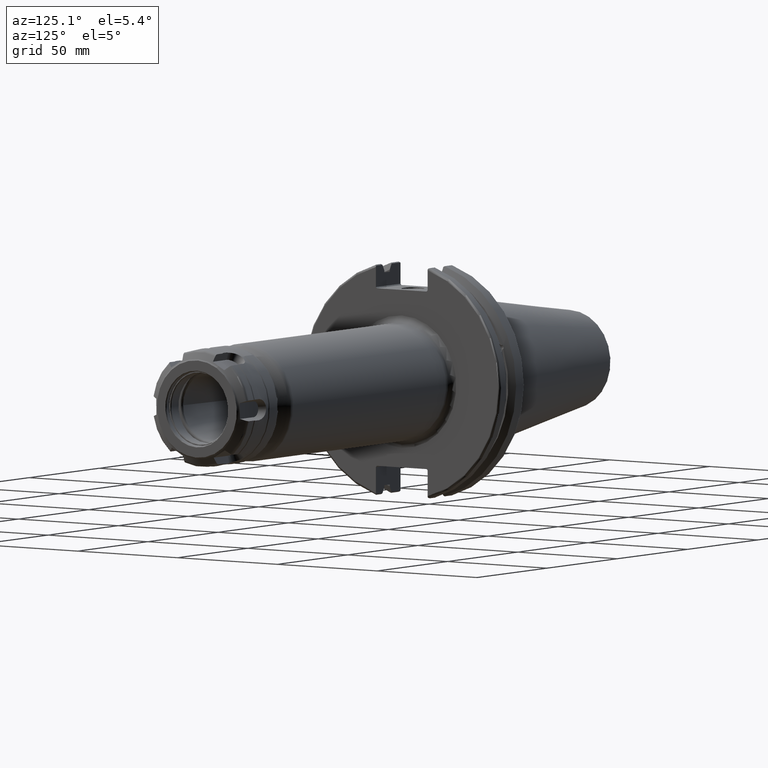
[diagram: clean part render]
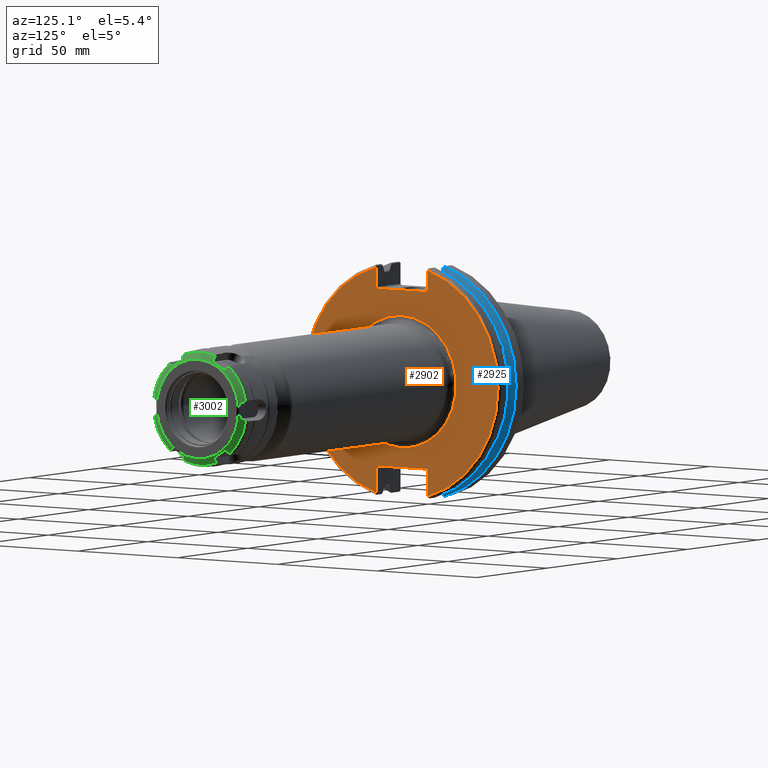
[diagram: same view with three faces highlighted in distinct colors, each labeled with its STEP entity id]
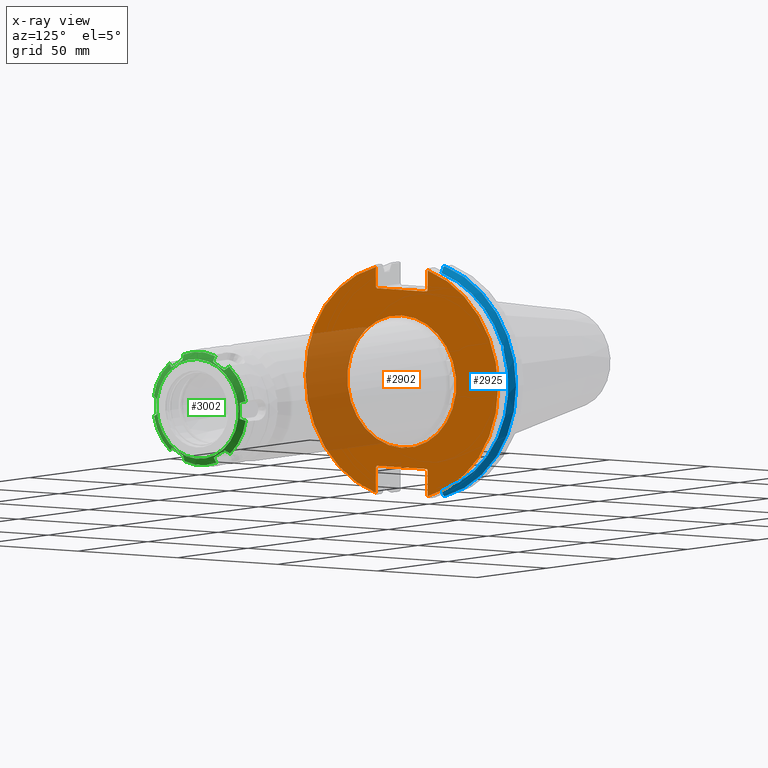
[diagram: x-ray of the same camera — body ghosted, the three highlighted faces saturated]
A machine part, auxiliary view with three faces highlighted in distinct colors.
The next image is the same camera in x-ray (body ghosted, the three faces saturated) — at least one of them is partly hidden behind the body in this view.
Their STEP definitions:

[orange] entity #2902 — the highlighted planar face has unit normal (1, 0, 0).
#200=LINE('',#4392,#370);
#201=LINE('',#4394,#371);
#202=LINE('',#4396,#372);
#203=LINE('',#4398,#373);
#204=LINE('',#4400,#374);
#205=LINE('',#4404,#375);
#206=LINE('',#4406,#376);
#207=LINE('',#4408,#377);
#208=LINE('',#4410,#378);
#209=LINE('',#4411,#379);
#370=VECTOR('',#3553,10.);
#371=VECTOR('',#3554,10.);
#372=VECTOR('',#3555,10.);
#373=VECTOR('',#3556,10.);
#374=VECTOR('',#3557,10.);
#375=VECTOR('',#3560,10.);
#376=VECTOR('',#3561,10.);
#377=VECTOR('',#3562,10.);
#378=VECTOR('',#3563,10.);
#379=VECTOR('',#3564,10.);
#577=FACE_BOUND('',#845,.T.);
#601=PLANE('',#3163);
#673=FACE_OUTER_BOUND('',#844,.T.);
#844=EDGE_LOOP('',(#2010,#2011,#2012,#2013,#2014,#2015,#2016,#2017,#2018,
#2019,#2020,#2021));
#845=EDGE_LOOP('',(#2022));
#1050=CIRCLE('',#3162,27.25);
#1051=CIRCLE('',#3164,48.2125);
#1052=CIRCLE('',#3165,48.2125);
#1211=VERTEX_POINT('',#4384);
#1212=VERTEX_POINT('',#4388);
#1213=VERTEX_POINT('',#4389);
#1214=VERTEX_POINT('',#4391);
#1215=VERTEX_POINT('',#4393);
#1216=VERTEX_POINT('',#4395);
#1217=VERTEX_POINT('',#4397);
#1218=VERTEX_POINT('',#4399);
#1219=VERTEX_POINT('',#4401);
#1220=VERTEX_POINT('',#4403);
#1221=VERTEX_POINT('',#4405);
#1222=VERTEX_POINT('',#4407);
#1223=VERTEX_POINT('',#4409);
#1525=EDGE_CURVE('',#1211,#1211,#1050,.T.);
#1526=EDGE_CURVE('',#1212,#1213,#1051,.T.);
#1527=EDGE_CURVE('',#1212,#1214,#200,.T.);
#1528=EDGE_CURVE('',#1215,#1214,#201,.T.);
#1529=EDGE_CURVE('',#1215,#1216,#202,.T.);
#1530=EDGE_CURVE('',#1217,#1216,#203,.T.);
#1531=EDGE_CURVE('',#1217,#1218,#204,.T.);
#1532=EDGE_CURVE('',#1219,#1218,#1052,.T.);
#1533=EDGE_CURVE('',#1219,#1220,#205,.T.);
#1534=EDGE_CURVE('',#1221,#1220,#206,.T.);
#1535=EDGE_CURVE('',#1221,#1222,#207,.T.);
#1536=EDGE_CURVE('',#1223,#1222,#208,.T.);
#1537=EDGE_CURVE('',#1223,#1213,#209,.T.);
#2010=ORIENTED_EDGE('',*,*,#1526,.F.);
#2011=ORIENTED_EDGE('',*,*,#1527,.T.);
#2012=ORIENTED_EDGE('',*,*,#1528,.F.);
#2013=ORIENTED_EDGE('',*,*,#1529,.T.);
#2014=ORIENTED_EDGE('',*,*,#1530,.F.);
#2015=ORIENTED_EDGE('',*,*,#1531,.T.);
#2016=ORIENTED_EDGE('',*,*,#1532,.F.);
#2017=ORIENTED_EDGE('',*,*,#1533,.T.);
#2018=ORIENTED_EDGE('',*,*,#1534,.F.);
#2019=ORIENTED_EDGE('',*,*,#1535,.T.);
#2020=ORIENTED_EDGE('',*,*,#1536,.F.);
#2021=ORIENTED_EDGE('',*,*,#1537,.T.);
#2022=ORIENTED_EDGE('',*,*,#1525,.F.);
#2902=ADVANCED_FACE('',(#673,#577),#601,.T.);
#3162=AXIS2_PLACEMENT_3D('',#4386,#3547,#3548);
#3163=AXIS2_PLACEMENT_3D('',#4387,#3549,#3550);
#3164=AXIS2_PLACEMENT_3D('',#4390,#3551,#3552);
#3165=AXIS2_PLACEMENT_3D('',#4402,#3558,#3559);
#3547=DIRECTION('center_axis',(1.,0.,0.));
#3548=DIRECTION('ref_axis',(0.,-1.,-1.22464679914735E-16));
#3549=DIRECTION('center_axis',(1.,0.,0.));
#3550=DIRECTION('ref_axis',(0.,0.,-1.));
#3551=DIRECTION('center_axis',(-1.,0.,0.));
#3552=DIRECTION('ref_axis',(0.,1.,-6.12323399573677E-17));
#3553=DIRECTION('',(0.,0.,-1.));
#3554=DIRECTION('',(0.,0.707106781186549,0.707106781186546));
#3555=DIRECTION('',(0.,-1.,0.));
#3556=DIRECTION('',(0.,0.707106781186549,-0.707106781186546));
#3557=DIRECTION('',(0.,0.,1.));
#3558=DIRECTION('center_axis',(-1.,0.,0.));
#3559=DIRECTION('ref_axis',(0.,-1.,1.60812264967664E-16));
#3560=DIRECTION('',(0.,0.,1.));
#3561=DIRECTION('',(0.,-0.707106781186549,-0.707106781186546));
#3562=DIRECTION('',(0.,1.,0.));
#3563=DIRECTION('',(0.,-0.707106781186548,0.707106781186548));
#3564=DIRECTION('',(0.,0.,-1.));
#4384=CARTESIAN_POINT('',(19.05,-3.33716252767654E-15,-27.25));
#4386=CARTESIAN_POINT('Origin',(19.05,0.,0.));
#4387=CARTESIAN_POINT('Origin',(19.05,0.,0.));
#4388=CARTESIAN_POINT('',(19.05,12.95,46.4407434937254));
#4389=CARTESIAN_POINT('',(19.05,12.95,-46.4407434937254));
#4390=CARTESIAN_POINT('Origin',(19.05,0.,0.));
#4391=CARTESIAN_POINT('',(19.05,12.95,38.219));
#4392=CARTESIAN_POINT('',(19.05,12.95,18.8595));
#4393=CARTESIAN_POINT('',(19.05,12.45,37.719));
#4394=CARTESIAN_POINT('',(19.05,0.0327499999999836,25.30175));
#4395=CARTESIAN_POINT('',(19.05,-12.45,37.719));
#4396=CARTESIAN_POINT('',(19.05,0.,37.719));
#4397=CARTESIAN_POINT('',(19.05,-12.95,38.219));
#4398=CARTESIAN_POINT('',(19.05,-0.0327499999999817,25.30175));
#4399=CARTESIAN_POINT('',(19.05,-12.95,46.4407434937254));
#4400=CARTESIAN_POINT('',(19.05,-12.95,18.8595));
#4401=CARTESIAN_POINT('',(19.05,-12.95,-46.4407434937254));
#4402=CARTESIAN_POINT('Origin',(19.05,0.,0.));
#4403=CARTESIAN_POINT('',(19.05,-12.95,-35.806));
#4404=CARTESIAN_POINT('',(19.05,-12.95,-17.653));
#4405=CARTESIAN_POINT('',(19.05,-12.45,-35.306));
#4406=CARTESIAN_POINT('',(19.05,-0.635999999999989,-23.492));
#4407=CARTESIAN_POINT('',(19.05,12.45,-35.306));
#4408=CARTESIAN_POINT('',(19.05,-3.88578058618805E-15,-35.306));
#4409=CARTESIAN_POINT('',(19.05,12.95,-35.806));
#4410=CARTESIAN_POINT('',(19.05,0.635999999999995,-23.492));
#4411=CARTESIAN_POINT('',(19.05,12.95,-17.653));

[blue] entity #2925 — the highlighted conical surface has half-angle 60 deg.
#31=(
BOUNDED_CURVE()
B_SPLINE_CURVE(2,(#4927,#4928,#4929),.UNSPECIFIED.,.F.,.F.)
B_SPLINE_CURVE_WITH_KNOTS((3,3),(0.,0.275823910672166),.UNSPECIFIED.)
CURVE()
GEOMETRIC_REPRESENTATION_ITEM()
RATIONAL_B_SPLINE_CURVE((1.,1.00038235574667,1.00012873636849))
REPRESENTATION_ITEM('')
);
#32=(
BOUNDED_CURVE()
B_SPLINE_CURVE(2,(#4931,#4932,#4933),.UNSPECIFIED.,.F.,.F.)
B_SPLINE_CURVE_WITH_KNOTS((3,3),(0.,0.0648240472897056),.UNSPECIFIED.)
CURVE()
GEOMETRIC_REPRESENTATION_ITEM()
RATIONAL_B_SPLINE_CURVE((1.,1.00011477674866,1.00019140645998))
REPRESENTATION_ITEM('')
);
#33=(
BOUNDED_CURVE()
B_SPLINE_CURVE(2,(#4937,#4938,#4939),.UNSPECIFIED.,.F.,.F.)
B_SPLINE_CURVE_WITH_KNOTS((3,3),(0.325260944932444,0.390084992222205),
 .UNSPECIFIED.)
CURVE()
GEOMETRIC_REPRESENTATION_ITEM()
RATIONAL_B_SPLINE_CURVE((1.00019140645975,1.00011477674852,1.))
REPRESENTATION_ITEM('')
);
#34=(
BOUNDED_CURVE()
B_SPLINE_CURVE(2,(#4941,#4942,#4943),.UNSPECIFIED.,.F.,.F.)
B_SPLINE_CURVE_WITH_KNOTS((3,3),(0.0558332664521729,0.331657177124506),
 .UNSPECIFIED.)
CURVE()
GEOMETRIC_REPRESENTATION_ITEM()
RATIONAL_B_SPLINE_CURVE((1.00012873636948,1.0003823557496,1.))
REPRESENTATION_ITEM('')
);
#99=B_SPLINE_CURVE_WITH_KNOTS('',3,(#4880,#4881,#4882,#4883,#4884,#4885,
#4886,#4887,#4888,#4889,#4890,#4891,#4892,#4893),.UNSPECIFIED.,.F.,.F.,
(4,2,2,2,2,2,4),(0.426712868358722,0.441644498666905,0.480313313223129,
0.518982127779353,0.557650942335577,0.596319756891801,0.611251387199987),
 .UNSPECIFIED.);
#541=CONICAL_SURFACE('',#3211,47.8172386482472,1.0471975511966);
#696=FACE_OUTER_BOUND('',#876,.T.);
#876=EDGE_LOOP('',(#2148,#2149,#2150,#2151,#2152,#2153,#2154,#2155));
#1075=CIRCLE('',#3212,46.4219772964944);
#1076=CIRCLE('',#3213,49.2125);
#1077=CIRCLE('',#3214,46.4219772964944);
#1276=VERTEX_POINT('',#4877);
#1277=VERTEX_POINT('',#4879);
#1281=VERTEX_POINT('',#4924);
#1282=VERTEX_POINT('',#4926);
#1283=VERTEX_POINT('',#4930);
#1284=VERTEX_POINT('',#4934);
#1285=VERTEX_POINT('',#4936);
#1286=VERTEX_POINT('',#4940);
#1609=EDGE_CURVE('',#1277,#1276,#99,.T.);
#1614=EDGE_CURVE('',#1281,#1276,#1075,.T.);
#1615=EDGE_CURVE('',#1281,#1282,#31,.T.);
#1616=EDGE_CURVE('',#1283,#1282,#32,.T.);
#1617=EDGE_CURVE('',#1283,#1284,#1076,.T.);
#1618=EDGE_CURVE('',#1285,#1284,#33,.T.);
#1619=EDGE_CURVE('',#1285,#1286,#34,.T.);
#1620=EDGE_CURVE('',#1277,#1286,#1077,.T.);
#2148=ORIENTED_EDGE('',*,*,#1609,.T.);
#2149=ORIENTED_EDGE('',*,*,#1614,.F.);
#2150=ORIENTED_EDGE('',*,*,#1615,.T.);
#2151=ORIENTED_EDGE('',*,*,#1616,.F.);
#2152=ORIENTED_EDGE('',*,*,#1617,.T.);
#2153=ORIENTED_EDGE('',*,*,#1618,.F.);
#2154=ORIENTED_EDGE('',*,*,#1619,.T.);
#2155=ORIENTED_EDGE('',*,*,#1620,.F.);
#2925=ADVANCED_FACE('',(#696),#541,.T.);
#3211=AXIS2_PLACEMENT_3D('',#4923,#3680,#3681);
#3212=AXIS2_PLACEMENT_3D('',#4925,#3682,#3683);
#3213=AXIS2_PLACEMENT_3D('',#4935,#3684,#3685);
#3214=AXIS2_PLACEMENT_3D('',#4944,#3686,#3687);
#3680=DIRECTION('center_axis',(-1.,0.,0.));
#3681=DIRECTION('ref_axis',(0.,1.,0.));
#3682=DIRECTION('center_axis',(1.,0.,0.));
#3683=DIRECTION('ref_axis',(0.,0.,-1.));
#3684=DIRECTION('center_axis',(1.,0.,0.));
#3685=DIRECTION('ref_axis',(0.,0.,-1.));
#3686=DIRECTION('center_axis',(1.,0.,0.));
#3687=DIRECTION('ref_axis',(0.,0.,-1.));
#4877=CARTESIAN_POINT('',(9.2191,43.9096390749305,15.0646464421033));
#4879=CARTESIAN_POINT('',(9.2191,43.3201030900029,16.6843832486479));
#4880=CARTESIAN_POINT('Ctrl Pts',(9.21909999999999,43.3201030900029,16.6843832486479));
#4881=CARTESIAN_POINT('Ctrl Pts',(9.20211843903391,43.3613106941341,16.6592273018006));
#4882=CARTESIAN_POINT('Ctrl Pts',(9.18608675403322,43.4012416983557,16.6326763251437));
#4883=CARTESIAN_POINT('Ctrl Pts',(9.13238673845037,43.539103734322,16.5325130832406));
#4884=CARTESIAN_POINT('Ctrl Pts',(9.09621610663555,43.6406982153492,16.441180795372));
#4885=CARTESIAN_POINT('Ctrl Pts',(9.04690868251975,43.8110833825827,16.2291323464527));
#4886=CARTESIAN_POINT('Ctrl Pts',(9.0341,43.8794096049168,16.10796730316));
#4887=CARTESIAN_POINT('Ctrl Pts',(9.0341,43.9675796948952,15.8657219718732));
#4888=CARTESIAN_POINT('Ctrl Pts',(9.04690868251975,43.9931221605126,15.7289849146254));
#4889=CARTESIAN_POINT('Ctrl Pts',(9.09621610663555,43.9989016655819,15.4570249042867));
#4890=CARTESIAN_POINT('Ctrl Pts',(9.13238673845037,43.9797830409458,15.3217566390708));
#4891=CARTESIAN_POINT('Ctrl Pts',(9.18608675403322,43.9385582852181,15.1564111356409));
#4892=CARTESIAN_POINT('Ctrl Pts',(9.20211843903392,43.9250360001461,15.1104047527575));
#4893=CARTESIAN_POINT('Ctrl Pts',(9.2191,43.9096390749305,15.0646464421033));
#4923=CARTESIAN_POINT('Origin',(8.41354548297563,0.,0.));
#4924=CARTESIAN_POINT('',(9.2191,12.95,-44.5791147973605));
#4925=CARTESIAN_POINT('Origin',(9.2191,0.,0.));
#4926=CARTESIAN_POINT('',(7.88638960562426,12.95,-46.9780755322918));
#4927=CARTESIAN_POINT('Ctrl Pts',(9.2191,12.95,-44.5791147973604));
#4928=CARTESIAN_POINT('Ctrl Pts',(8.57020449052114,12.95,-45.7494966802821));
#4929=CARTESIAN_POINT('Ctrl Pts',(7.88638960562426,12.95,-46.9780755322918));
#4930=CARTESIAN_POINT('',(7.60799096595127,13.4317035994433,-47.3440544806494));
#4931=CARTESIAN_POINT('Ctrl Pts',(7.60799096595127,13.4317035994433,-47.3440544806494));
#4932=CARTESIAN_POINT('Ctrl Pts',(7.74826896663827,13.1896660169965,-47.1601640966264));
#4933=CARTESIAN_POINT('Ctrl Pts',(7.88638960562426,12.95,-46.9780755322918));
#4934=CARTESIAN_POINT('',(7.60799096595127,13.4317035994433,47.3440544806494));
#4935=CARTESIAN_POINT('Origin',(7.60799096595127,0.,0.));
#4936=CARTESIAN_POINT('',(7.88638960562425,12.95,46.9780755322918));
#4937=CARTESIAN_POINT('Ctrl Pts',(7.88638960562425,12.95,46.9780755322918));
#4938=CARTESIAN_POINT('Ctrl Pts',(7.74826896663822,13.1896660169966,47.1601640966264));
#4939=CARTESIAN_POINT('Ctrl Pts',(7.60799096595127,13.4317035994433,47.3440544806494));
#4940=CARTESIAN_POINT('',(9.2191,12.95,44.5791147973604));
#4941=CARTESIAN_POINT('Ctrl Pts',(7.88638960562425,12.95,46.9780755322917));
#4942=CARTESIAN_POINT('Ctrl Pts',(8.57020449052122,12.95,45.749496680282));
#4943=CARTESIAN_POINT('Ctrl Pts',(9.2191,12.95,44.5791147973604));
#4944=CARTESIAN_POINT('Origin',(9.2191,0.,0.));

[green] entity #3002 — the highlighted conical surface has half-angle 60 deg.
#45=(
BOUNDED_CURVE()
B_SPLINE_CURVE(2,(#5309,#5310,#5311),.UNSPECIFIED.,.F.,.F.)
B_SPLINE_CURVE_WITH_KNOTS((3,3),(0.694545357055206,1.38391561202745),
 .UNSPECIFIED.)
CURVE()
GEOMETRIC_REPRESENTATION_ITEM()
RATIONAL_B_SPLINE_CURVE((1.05110006182296,1.06373247406221,1.05110006182296))
REPRESENTATION_ITEM('')
);
#46=(
BOUNDED_CURVE()
B_SPLINE_CURVE(2,(#5319,#5320,#5321),.UNSPECIFIED.,.F.,.F.)
B_SPLINE_CURVE_WITH_KNOTS((3,3),(0.080162300270924,0.3276968678385),
 .UNSPECIFIED.)
CURVE()
GEOMETRIC_REPRESENTATION_ITEM()
RATIONAL_B_SPLINE_CURVE((1.00078510698751,1.00160472628565,1.))
REPRESENTATION_ITEM('')
);
#48=(
BOUNDED_CURVE()
B_SPLINE_CURVE(2,(#5344,#5345,#5346),.UNSPECIFIED.,.F.,.F.)
B_SPLINE_CURVE_WITH_KNOTS((3,3),(0.,0.247534567568819),.UNSPECIFIED.)
CURVE()
GEOMETRIC_REPRESENTATION_ITEM()
RATIONAL_B_SPLINE_CURVE((1.,1.00160472628143,1.00078510698543))
REPRESENTATION_ITEM('')
);
#50=(
BOUNDED_CURVE()
B_SPLINE_CURVE(2,(#5399,#5400,#5401),.UNSPECIFIED.,.F.,.F.)
B_SPLINE_CURVE_WITH_KNOTS((3,3),(0.694545357055204,1.38391561202745),
 .UNSPECIFIED.)
CURVE()
GEOMETRIC_REPRESENTATION_ITEM()
RATIONAL_B_SPLINE_CURVE((1.05110006182296,1.06373247406221,1.05110006182296))
REPRESENTATION_ITEM('')
);
#51=(
BOUNDED_CURVE()
B_SPLINE_CURVE(2,(#5409,#5410,#5411),.UNSPECIFIED.,.F.,.F.)
B_SPLINE_CURVE_WITH_KNOTS((3,3),(0.0801623002684354,0.327696867838501),
 .UNSPECIFIED.)
CURVE()
GEOMETRIC_REPRESENTATION_ITEM()
RATIONAL_B_SPLINE_CURVE((1.00078510698355,1.00160472627759,1.))
REPRESENTATION_ITEM('')
);
#53=(
BOUNDED_CURVE()
B_SPLINE_CURVE(2,(#5434,#5435,#5436),.UNSPECIFIED.,.F.,.F.)
B_SPLINE_CURVE_WITH_KNOTS((3,3),(0.,0.247534567567963),.UNSPECIFIED.)
CURVE()
GEOMETRIC_REPRESENTATION_ITEM()
RATIONAL_B_SPLINE_CURVE((1.,1.00160472627856,1.00078510698404))
REPRESENTATION_ITEM('')
);
#55=(
BOUNDED_CURVE()
B_SPLINE_CURVE(2,(#5489,#5490,#5491),.UNSPECIFIED.,.F.,.F.)
B_SPLINE_CURVE_WITH_KNOTS((3,3),(0.694545357055204,1.03923048454133),
 .UNSPECIFIED.)
CURVE()
GEOMETRIC_REPRESENTATION_ITEM()
RATIONAL_B_SPLINE_CURVE((1.05110006182296,1.05741626794258,1.05741626794258))
REPRESENTATION_ITEM('')
);
#56=(
BOUNDED_CURVE()
B_SPLINE_CURVE(2,(#5498,#5499,#5500),.UNSPECIFIED.,.F.,.F.)
B_SPLINE_CURVE_WITH_KNOTS((3,3),(1.03923048454133,1.38391561202745),
 .UNSPECIFIED.)
CURVE()
GEOMETRIC_REPRESENTATION_ITEM()
RATIONAL_B_SPLINE_CURVE((1.05741626794258,1.05741626794258,1.05110006182296))
REPRESENTATION_ITEM('')
);
#57=(
BOUNDED_CURVE()
B_SPLINE_CURVE(2,(#5503,#5504,#5505),.UNSPECIFIED.,.F.,.F.)
B_SPLINE_CURVE_WITH_KNOTS((3,3),(0.080162300270171,0.327696867838501),
 .UNSPECIFIED.)
CURVE()
GEOMETRIC_REPRESENTATION_ITEM()
RATIONAL_B_SPLINE_CURVE((1.00078510698352,1.0016047262775,1.))
REPRESENTATION_ITEM('')
);
#59=(
BOUNDED_CURVE()
B_SPLINE_CURVE(2,(#5528,#5529,#5530),.UNSPECIFIED.,.F.,.F.)
B_SPLINE_CURVE_WITH_KNOTS((3,3),(0.,0.247534567567537),.UNSPECIFIED.)
CURVE()
GEOMETRIC_REPRESENTATION_ITEM()
RATIONAL_B_SPLINE_CURVE((1.,1.00160472628091,1.00078510698519))
REPRESENTATION_ITEM('')
);
#61=(
BOUNDED_CURVE()
B_SPLINE_CURVE(2,(#5586,#5587,#5588),.UNSPECIFIED.,.F.,.F.)
B_SPLINE_CURVE_WITH_KNOTS((3,3),(0.694545357055204,1.38391561202745),
 .UNSPECIFIED.)
CURVE()
GEOMETRIC_REPRESENTATION_ITEM()
RATIONAL_B_SPLINE_CURVE((1.05110006182296,1.06373247406221,1.05110006182296))
REPRESENTATION_ITEM('')
);
#62=(
BOUNDED_CURVE()
B_SPLINE_CURVE(2,(#5596,#5597,#5598),.UNSPECIFIED.,.F.,.F.)
B_SPLINE_CURVE_WITH_KNOTS((3,3),(0.0801623002690093,0.3276968678385),
 .UNSPECIFIED.)
CURVE()
GEOMETRIC_REPRESENTATION_ITEM()
RATIONAL_B_SPLINE_CURVE((1.00078510698538,1.00160472628133,1.))
REPRESENTATION_ITEM('')
);
#64=(
BOUNDED_CURVE()
B_SPLINE_CURVE(2,(#5621,#5622,#5623),.UNSPECIFIED.,.F.,.F.)
B_SPLINE_CURVE_WITH_KNOTS((3,3),(0.,0.247534567570192),.UNSPECIFIED.)
CURVE()
GEOMETRIC_REPRESENTATION_ITEM()
RATIONAL_B_SPLINE_CURVE((1.,1.00160472627398,1.00078510698178))
REPRESENTATION_ITEM('')
);
#66=(
BOUNDED_CURVE()
B_SPLINE_CURVE(2,(#5676,#5677,#5678),.UNSPECIFIED.,.F.,.F.)
B_SPLINE_CURVE_WITH_KNOTS((3,3),(0.694545357055204,1.38391561202745),
 .UNSPECIFIED.)
CURVE()
GEOMETRIC_REPRESENTATION_ITEM()
RATIONAL_B_SPLINE_CURVE((1.05110006182296,1.06373247406221,1.05110006182296))
REPRESENTATION_ITEM('')
);
#67=(
BOUNDED_CURVE()
B_SPLINE_CURVE(2,(#5686,#5687,#5688),.UNSPECIFIED.,.F.,.F.)
B_SPLINE_CURVE_WITH_KNOTS((3,3),(0.0801623002704062,0.327696867838501),
 .UNSPECIFIED.)
CURVE()
GEOMETRIC_REPRESENTATION_ITEM()
RATIONAL_B_SPLINE_CURVE((1.0007851069849,1.00160472628031,1.))
REPRESENTATION_ITEM('')
);
#69=(
BOUNDED_CURVE()
B_SPLINE_CURVE(2,(#5711,#5712,#5713),.UNSPECIFIED.,.F.,.F.)
B_SPLINE_CURVE_WITH_KNOTS((3,3),(0.,0.247534567567973),.UNSPECIFIED.)
CURVE()
GEOMETRIC_REPRESENTATION_ITEM()
RATIONAL_B_SPLINE_CURVE((1.,1.00160472627841,1.00078510698397))
REPRESENTATION_ITEM('')
);
#71=(
BOUNDED_CURVE()
B_SPLINE_CURVE(2,(#5772,#5773,#5774),.UNSPECIFIED.,.F.,.F.)
B_SPLINE_CURVE_WITH_KNOTS((3,3),(0.,0.247534567567825),.UNSPECIFIED.)
CURVE()
GEOMETRIC_REPRESENTATION_ITEM()
RATIONAL_B_SPLINE_CURVE((1.,1.00160472628163,1.00078510698554))
REPRESENTATION_ITEM('')
);
#72=(
BOUNDED_CURVE()
B_SPLINE_CURVE(2,(#5776,#5777,#5778),.UNSPECIFIED.,.F.,.F.)
B_SPLINE_CURVE_WITH_KNOTS((3,3),(0.694545357055206,1.38391561202745),
 .UNSPECIFIED.)
CURVE()
GEOMETRIC_REPRESENTATION_ITEM()
RATIONAL_B_SPLINE_CURVE((1.05110006182296,1.06373247406221,1.05110006182296))
REPRESENTATION_ITEM('')
);
#73=(
BOUNDED_CURVE()
B_SPLINE_CURVE(2,(#5780,#5781,#5782),.UNSPECIFIED.,.F.,.F.)
B_SPLINE_CURVE_WITH_KNOTS((3,3),(0.0801623002678694,0.327696867838501),
 .UNSPECIFIED.)
CURVE()
GEOMETRIC_REPRESENTATION_ITEM()
RATIONAL_B_SPLINE_CURVE((1.00078510697904,1.0016047262684,1.))
REPRESENTATION_ITEM('')
);
#341=LINE('',#5766,#511);
#511=VECTOR('',#4038,22.275);
#556=CONICAL_SURFACE('',#3335,22.275,1.0471975511966);
#773=FACE_OUTER_BOUND('',#960,.T.);
#960=EDGE_LOOP('',(#2576,#2577,#2578,#2579,#2580,#2581,#2582,#2583,#2584,
#2585,#2586,#2587,#2588,#2589,#2590,#2591,#2592,#2593,#2594,#2595,#2596,
#2597,#2598,#2599,#2600,#2601,#2602,#2603));
#1120=CIRCLE('',#3336,20.5);
#1121=CIRCLE('',#3337,23.3);
#1122=CIRCLE('',#3338,23.3);
#1123=CIRCLE('',#3339,23.3);
#1124=CIRCLE('',#3340,23.3);
#1125=CIRCLE('',#3341,23.3);
#1126=CIRCLE('',#3342,23.3);
#1355=VERTEX_POINT('',#5307);
#1356=VERTEX_POINT('',#5308);
#1359=VERTEX_POINT('',#5318);
#1365=VERTEX_POINT('',#5343);
#1373=VERTEX_POINT('',#5397);
#1374=VERTEX_POINT('',#5398);
#1377=VERTEX_POINT('',#5408);
#1383=VERTEX_POINT('',#5433);
#1391=VERTEX_POINT('',#5487);
#1392=VERTEX_POINT('',#5488);
#1395=VERTEX_POINT('',#5496);
#1396=VERTEX_POINT('',#5502);
#1402=VERTEX_POINT('',#5527);
#1411=VERTEX_POINT('',#5584);
#1412=VERTEX_POINT('',#5585);
#1415=VERTEX_POINT('',#5595);
#1421=VERTEX_POINT('',#5620);
#1429=VERTEX_POINT('',#5674);
#1430=VERTEX_POINT('',#5675);
#1433=VERTEX_POINT('',#5685);
#1439=VERTEX_POINT('',#5710);
#1447=VERTEX_POINT('',#5764);
#1448=VERTEX_POINT('',#5769);
#1449=VERTEX_POINT('',#5771);
#1450=VERTEX_POINT('',#5775);
#1451=VERTEX_POINT('',#5779);
#1741=EDGE_CURVE('',#1355,#1356,#45,.T.);
#1745=EDGE_CURVE('',#1356,#1359,#46,.T.);
#1752=EDGE_CURVE('',#1365,#1355,#48,.T.);
#1762=EDGE_CURVE('',#1373,#1374,#50,.T.);
#1766=EDGE_CURVE('',#1374,#1377,#51,.T.);
#1773=EDGE_CURVE('',#1383,#1373,#53,.T.);
#1783=EDGE_CURVE('',#1391,#1392,#55,.T.);
#1787=EDGE_CURVE('',#1392,#1395,#56,.T.);
#1788=EDGE_CURVE('',#1395,#1396,#57,.T.);
#1795=EDGE_CURVE('',#1402,#1391,#59,.T.);
#1806=EDGE_CURVE('',#1411,#1412,#61,.T.);
#1810=EDGE_CURVE('',#1412,#1415,#62,.T.);
#1817=EDGE_CURVE('',#1421,#1411,#64,.T.);
#1827=EDGE_CURVE('',#1429,#1430,#66,.T.);
#1831=EDGE_CURVE('',#1430,#1433,#67,.T.);
#1838=EDGE_CURVE('',#1439,#1429,#69,.T.);
#1848=EDGE_CURVE('',#1447,#1447,#1120,.T.);
#1849=EDGE_CURVE('',#1447,#1392,#341,.T.);
#1850=EDGE_CURVE('',#1383,#1396,#1121,.T.);
#1851=EDGE_CURVE('',#1365,#1377,#1122,.T.);
#1852=EDGE_CURVE('',#1448,#1359,#1123,.T.);
#1853=EDGE_CURVE('',#1448,#1449,#71,.T.);
#1854=EDGE_CURVE('',#1449,#1450,#72,.T.);
#1855=EDGE_CURVE('',#1450,#1451,#73,.T.);
#1856=EDGE_CURVE('',#1439,#1451,#1124,.T.);
#1857=EDGE_CURVE('',#1421,#1433,#1125,.T.);
#1858=EDGE_CURVE('',#1402,#1415,#1126,.T.);
#2576=ORIENTED_EDGE('',*,*,#1848,.F.);
#2577=ORIENTED_EDGE('',*,*,#1849,.T.);
#2578=ORIENTED_EDGE('',*,*,#1787,.T.);
#2579=ORIENTED_EDGE('',*,*,#1788,.T.);
#2580=ORIENTED_EDGE('',*,*,#1850,.F.);
#2581=ORIENTED_EDGE('',*,*,#1773,.T.);
#2582=ORIENTED_EDGE('',*,*,#1762,.T.);
#2583=ORIENTED_EDGE('',*,*,#1766,.T.);
#2584=ORIENTED_EDGE('',*,*,#1851,.F.);
#2585=ORIENTED_EDGE('',*,*,#1752,.T.);
#2586=ORIENTED_EDGE('',*,*,#1741,.T.);
#2587=ORIENTED_EDGE('',*,*,#1745,.T.);
#2588=ORIENTED_EDGE('',*,*,#1852,.F.);
#2589=ORIENTED_EDGE('',*,*,#1853,.T.);
#2590=ORIENTED_EDGE('',*,*,#1854,.T.);
#2591=ORIENTED_EDGE('',*,*,#1855,.T.);
#2592=ORIENTED_EDGE('',*,*,#1856,.F.);
#2593=ORIENTED_EDGE('',*,*,#1838,.T.);
#2594=ORIENTED_EDGE('',*,*,#1827,.T.);
#2595=ORIENTED_EDGE('',*,*,#1831,.T.);
#2596=ORIENTED_EDGE('',*,*,#1857,.F.);
#2597=ORIENTED_EDGE('',*,*,#1817,.T.);
#2598=ORIENTED_EDGE('',*,*,#1806,.T.);
#2599=ORIENTED_EDGE('',*,*,#1810,.T.);
#2600=ORIENTED_EDGE('',*,*,#1858,.F.);
#2601=ORIENTED_EDGE('',*,*,#1795,.T.);
#2602=ORIENTED_EDGE('',*,*,#1783,.T.);
#2603=ORIENTED_EDGE('',*,*,#1849,.F.);
#3002=ADVANCED_FACE('',(#773),#556,.T.);
#3335=AXIS2_PLACEMENT_3D('',#5763,#4034,#4035);
#3336=AXIS2_PLACEMENT_3D('',#5765,#4036,#4037);
#3337=AXIS2_PLACEMENT_3D('',#5767,#4039,#4040);
#3338=AXIS2_PLACEMENT_3D('',#5768,#4041,#4042);
#3339=AXIS2_PLACEMENT_3D('',#5770,#4043,#4044);
#3340=AXIS2_PLACEMENT_3D('',#5783,#4045,#4046);
#3341=AXIS2_PLACEMENT_3D('',#5784,#4047,#4048);
#3342=AXIS2_PLACEMENT_3D('',#5785,#4049,#4050);
#4034=DIRECTION('center_axis',(-1.,0.,0.));
#4035=DIRECTION('ref_axis',(0.,1.,0.));
#4036=DIRECTION('center_axis',(1.,0.,0.));
#4037=DIRECTION('ref_axis',(0.,0.,-1.));
#4038=DIRECTION('',(-0.5,-0.866025403784439,-1.06057523872491E-16));
#4039=DIRECTION('center_axis',(-1.,0.,0.));
#4040=DIRECTION('ref_axis',(0.,-1.,3.06161699786838E-17));
#4041=DIRECTION('center_axis',(-1.,0.,0.));
#4042=DIRECTION('ref_axis',(0.,-1.,3.06161699786838E-17));
#4043=DIRECTION('center_axis',(-1.,0.,0.));
#4044=DIRECTION('ref_axis',(0.,-1.,3.06161699786838E-17));
#4045=DIRECTION('center_axis',(-1.,0.,0.));
#4046=DIRECTION('ref_axis',(0.,-1.,3.06161699786838E-17));
#4047=DIRECTION('center_axis',(-1.,0.,0.));
#4048=DIRECTION('ref_axis',(0.,-1.,3.06161699786838E-17));
#4049=DIRECTION('center_axis',(-1.,0.,0.));
#4050=DIRECTION('ref_axis',(0.,-1.,3.06161699786838E-17));
#5307=CARTESIAN_POINT('',(23.1240398969693,7.63541743770056,-19.7249309390948));
#5308=CARTESIAN_POINT('',(23.1240398969693,13.2645825622994,-16.4749309390948));
#5309=CARTESIAN_POINT('Ctrl Pts',(23.1240398969693,7.63541743770056,-19.7249309390948));
#5310=CARTESIAN_POINT('Ctrl Pts',(23.4123576949201,10.45,-18.0999309390948));
#5311=CARTESIAN_POINT('Ctrl Pts',(23.1240398969693,13.2645825622994,-16.4749309390948));
#5318=CARTESIAN_POINT('',(21.883419246269,14.9394047670733,-17.8802736334081));
#5319=CARTESIAN_POINT('Ctrl Pts',(23.1240398969693,13.2645825622994,-16.4749309390948));
#5320=CARTESIAN_POINT('Ctrl Pts',(22.5347719901748,14.0615123103287,-17.1436343967403));
#5321=CARTESIAN_POINT('Ctrl Pts',(21.883419246269,14.9394047670733,-17.8802736334081));
#5343=CARTESIAN_POINT('',(21.883419246269,8.01506880961179,-21.8780408624079));
#5344=CARTESIAN_POINT('Ctrl Pts',(21.883419246269,8.01506880961179,-21.8780408624079));
#5345=CARTESIAN_POINT('Ctrl Pts',(22.5347719901634,7.81606674560894,-20.7494440747621));
#5346=CARTESIAN_POINT('Ctrl Pts',(23.1240398969693,7.63541743770056,-19.7249309390948));
#5397=CARTESIAN_POINT('',(23.1240398969693,-13.2645825622994,-16.4749309390948));
#5398=CARTESIAN_POINT('',(23.1240398969693,-7.63541743770058,-19.7249309390948));
#5399=CARTESIAN_POINT('Ctrl Pts',(23.1240398969693,-13.2645825622994,-16.4749309390948));
#5400=CARTESIAN_POINT('Ctrl Pts',(23.4123576949201,-10.45,-18.0999309390948));
#5401=CARTESIAN_POINT('Ctrl Pts',(23.1240398969693,-7.63541743770058,-19.7249309390948));
#5408=CARTESIAN_POINT('',(21.883419246269,-8.01506880961182,-21.8780408624079));
#5409=CARTESIAN_POINT('Ctrl Pts',(23.1240398969693,-7.63541743770058,-19.7249309390948));
#5410=CARTESIAN_POINT('Ctrl Pts',(22.5347719901523,-7.81606674561238,-20.7494440747814));
#5411=CARTESIAN_POINT('Ctrl Pts',(21.883419246269,-8.01506880961182,-21.8780408624079));
#5433=CARTESIAN_POINT('',(21.883419246269,-14.9394047670733,-17.8802736334081));
#5434=CARTESIAN_POINT('Ctrl Pts',(21.883419246269,-14.9394047670733,-17.8802736334081));
#5435=CARTESIAN_POINT('Ctrl Pts',(22.5347719901678,-14.0615123103381,-17.1436343967482));
#5436=CARTESIAN_POINT('Ctrl Pts',(23.1240398969693,-13.2645825622994,-16.4749309390948));
#5487=CARTESIAN_POINT('',(23.1240398969693,-20.9,3.25));
#5488=CARTESIAN_POINT('',(23.2690598923241,-20.9,-2.52655896811422E-15));
#5489=CARTESIAN_POINT('Ctrl Pts',(23.1240398969693,-20.9,3.25));
#5490=CARTESIAN_POINT('Ctrl Pts',(23.2690598923241,-20.9,1.61529347736028));
#5491=CARTESIAN_POINT('Ctrl Pts',(23.2690598923241,-20.9,-2.49360612601047E-15));
#5496=CARTESIAN_POINT('',(23.1240398969693,-20.9,-3.25));
#5498=CARTESIAN_POINT('Ctrl Pts',(23.2690598923241,-20.9,-2.49360612601047E-15));
#5499=CARTESIAN_POINT('Ctrl Pts',(23.2690598923241,-20.9,-1.61529347736028));
#5500=CARTESIAN_POINT('Ctrl Pts',(23.1240398969693,-20.9,-3.25));
#5502=CARTESIAN_POINT('',(21.883419246269,-22.9544735766851,-3.9977672289998));
#5503=CARTESIAN_POINT('Ctrl Pts',(23.1240398969693,-20.9,-3.25));
#5504=CARTESIAN_POINT('Ctrl Pts',(22.5347719901646,-21.877579055951,-3.60580967800822));
#5505=CARTESIAN_POINT('Ctrl Pts',(21.883419246269,-22.9544735766851,-3.9977672289998));
#5527=CARTESIAN_POINT('',(21.883419246269,-22.9544735766851,3.99776722899981));
#5528=CARTESIAN_POINT('Ctrl Pts',(21.883419246269,-22.9544735766851,3.99776722899981));
#5529=CARTESIAN_POINT('Ctrl Pts',(22.5347719901723,-21.8775790559383,3.60580967800361));
#5530=CARTESIAN_POINT('Ctrl Pts',(23.1240398969693,-20.9,3.25));
#5584=CARTESIAN_POINT('',(23.1240398969693,-7.63541743770057,19.7249309390948));
#5585=CARTESIAN_POINT('',(23.1240398969693,-13.2645825622994,16.4749309390948));
#5586=CARTESIAN_POINT('Ctrl Pts',(23.1240398969693,-7.63541743770057,19.7249309390948));
#5587=CARTESIAN_POINT('Ctrl Pts',(23.4123576949201,-10.45,18.0999309390948));
#5588=CARTESIAN_POINT('Ctrl Pts',(23.1240398969693,-13.2645825622994,16.4749309390948));
#5595=CARTESIAN_POINT('',(21.883419246269,-14.9394047670733,17.8802736334081));
#5596=CARTESIAN_POINT('Ctrl Pts',(23.1240398969693,-13.2645825622994,16.4749309390948));
#5597=CARTESIAN_POINT('Ctrl Pts',(22.5347719901586,-14.0615123103505,17.1436343967587));
#5598=CARTESIAN_POINT('Ctrl Pts',(21.883419246269,-14.9394047670733,17.8802736334081));
#5620=CARTESIAN_POINT('',(21.883419246269,-8.0150688096118,21.8780408624079));
#5621=CARTESIAN_POINT('Ctrl Pts',(21.883419246269,-8.0150688096118,21.8780408624079));
#5622=CARTESIAN_POINT('Ctrl Pts',(22.5347719901493,-7.81606674561329,20.7494440747867));
#5623=CARTESIAN_POINT('Ctrl Pts',(23.1240398969693,-7.63541743770057,19.7249309390948));
#5674=CARTESIAN_POINT('',(23.1240398969693,13.2645825622994,16.4749309390948));
#5675=CARTESIAN_POINT('',(23.1240398969693,7.63541743770058,19.7249309390948));
#5676=CARTESIAN_POINT('Ctrl Pts',(23.1240398969693,13.2645825622994,16.4749309390948));
#5677=CARTESIAN_POINT('Ctrl Pts',(23.4123576949201,10.45,18.0999309390948));
#5678=CARTESIAN_POINT('Ctrl Pts',(23.1240398969693,7.63541743770058,19.7249309390948));
#5685=CARTESIAN_POINT('',(21.883419246269,8.01506880961181,21.8780408624079));
#5686=CARTESIAN_POINT('Ctrl Pts',(23.1240398969693,7.63541743770058,19.7249309390948));
#5687=CARTESIAN_POINT('Ctrl Pts',(22.5347719901679,7.81606674560758,20.7494440747543));
#5688=CARTESIAN_POINT('Ctrl Pts',(21.883419246269,8.01506880961181,21.8780408624079));
#5710=CARTESIAN_POINT('',(21.883419246269,14.9394047670733,17.8802736334081));
#5711=CARTESIAN_POINT('Ctrl Pts',(21.883419246269,14.9394047670733,17.8802736334081));
#5712=CARTESIAN_POINT('Ctrl Pts',(22.5347719901677,14.0615123103383,17.1436343967484));
#5713=CARTESIAN_POINT('Ctrl Pts',(23.1240398969693,13.2645825622994,16.4749309390948));
#5763=CARTESIAN_POINT('Origin',(22.4752032721884,0.,0.));
#5764=CARTESIAN_POINT('',(23.5,-20.5,-2.51052593825207E-15));
#5765=CARTESIAN_POINT('Origin',(23.5,0.,0.));
#5766=CARTESIAN_POINT('',(22.4752032721884,-22.275,-2.72790074510073E-15));
#5767=CARTESIAN_POINT('Origin',(21.883419246269,0.,-3.56678380251667E-15));
#5768=CARTESIAN_POINT('Origin',(21.883419246269,0.,-3.56678380251667E-15));
#5769=CARTESIAN_POINT('',(21.883419246269,22.9544735766851,-3.9977672289998));
#5770=CARTESIAN_POINT('Origin',(21.883419246269,0.,-3.56678380251667E-15));
#5771=CARTESIAN_POINT('',(23.1240398969693,20.9,-3.25));
#5772=CARTESIAN_POINT('Ctrl Pts',(21.883419246269,22.9544735766851,-3.9977672289998));
#5773=CARTESIAN_POINT('Ctrl Pts',(22.5347719901706,21.877579055941,-3.60580967800459));
#5774=CARTESIAN_POINT('Ctrl Pts',(23.1240398969693,20.9,-3.25));
#5775=CARTESIAN_POINT('',(23.1240398969693,20.9,3.25));
#5776=CARTESIAN_POINT('Ctrl Pts',(23.1240398969693,20.9,-3.25));
#5777=CARTESIAN_POINT('Ctrl Pts',(23.4123576949201,20.9,-5.55111512312578E-16));
#5778=CARTESIAN_POINT('Ctrl Pts',(23.1240398969693,20.9,3.25));
#5779=CARTESIAN_POINT('',(21.883419246269,22.9544735766851,3.9977672289998));
#5780=CARTESIAN_POINT('Ctrl Pts',(23.1240398969693,20.9,3.25));
#5781=CARTESIAN_POINT('Ctrl Pts',(22.5347719901429,21.8775790559871,3.60580967802135));
#5782=CARTESIAN_POINT('Ctrl Pts',(21.883419246269,22.9544735766851,3.99776722899981));
#5783=CARTESIAN_POINT('Origin',(21.883419246269,0.,-3.56678380251667E-15));
#5784=CARTESIAN_POINT('Origin',(21.883419246269,0.,-3.56678380251667E-15));
#5785=CARTESIAN_POINT('Origin',(21.883419246269,0.,-3.56678380251667E-15));